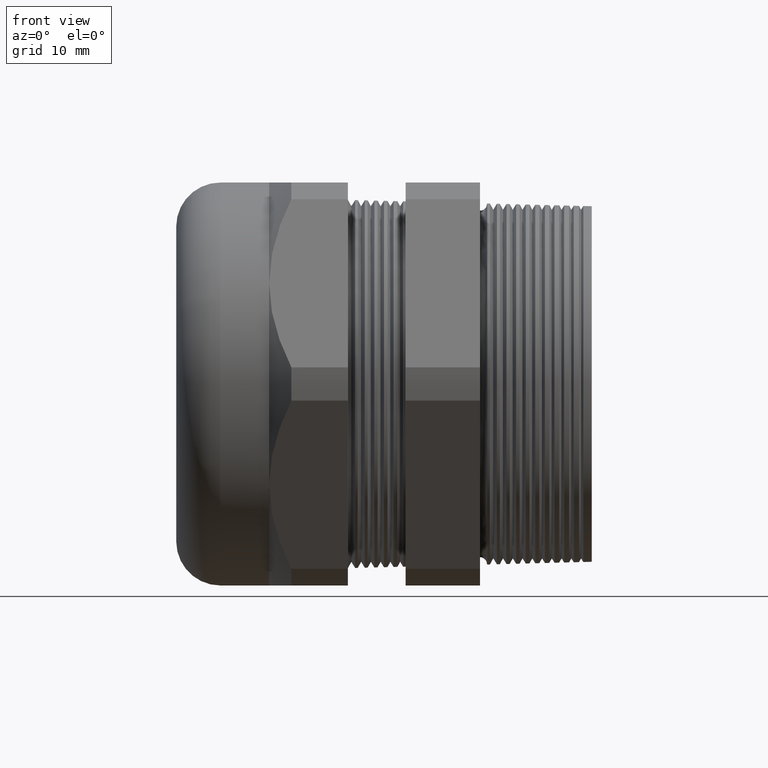
[diagram: clean part render]
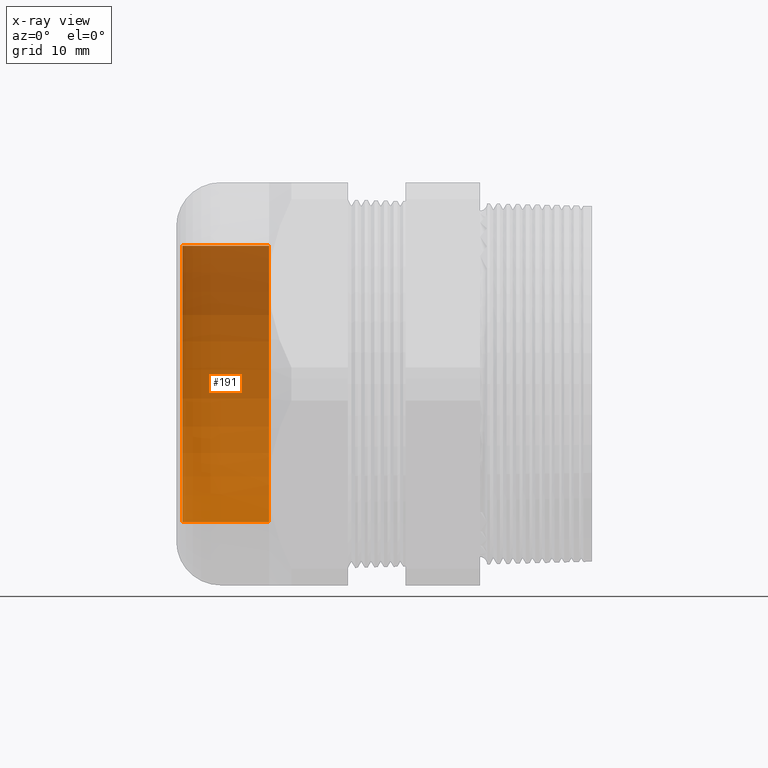
[diagram: x-ray — body ghosted, one internal face saturated and labeled with its STEP entity id]
A machine part, front view, then the same camera in x-ray: the body is ghosted and one INTERNAL B-rep face — a face not visible from any outside direction — is saturated and labeled: STEP entity #191.
In plain terms, the highlighted cylindrical surface (partial cylindrical patch) has radius 22.2885 mm, axis along (1, 0, 0).
Its self-contained STEP definition (entity closure, byte-faithful):
#165 = ORIENTED_EDGE ( 'NONE', *, *, #187, .T. ) ;
#166 = ORIENTED_EDGE ( 'NONE', *, *, #167, .T. ) ;
#167 = EDGE_CURVE ( 'NONE', #185, #168, #533, .T. ) ;
#168 = VERTEX_POINT ( 'NONE', #529 ) ;
#169 = ORIENTED_EDGE ( 'NONE', *, *, #170, .F. ) ;
#170 = EDGE_CURVE ( 'NONE', #171, #168, #528, .T. ) ;
#171 = VERTEX_POINT ( 'NONE', #523 ) ;
#172 = ORIENTED_EDGE ( 'NONE', *, *, #173, .F. ) ;
#173 = EDGE_CURVE ( 'NONE', #188, #171, #587, .T. ) ;
#185 = VERTEX_POINT ( 'NONE', #558 ) ;
#187 = EDGE_CURVE ( 'NONE', #188, #185, #557, .T. ) ;
#188 = VERTEX_POINT ( 'NONE', #618 ) ;
#191 = ADVANCED_FACE ( 'NONE', ( #617 ), #609, .T. ) ;
#192 = EDGE_LOOP ( 'NONE', ( #165, #166, #169, #172 ) ) ;
#523 = CARTESIAN_POINT ( 'NONE',  ( -1.649449999999999600, 0.0000000000000000000, -0.8774999999999999500 ) ) ;
#524 = DIRECTION ( 'NONE',  ( 0.0000000000000000000, 0.0000000000000000000, -1.000000000000000000 ) ) ;
#525 = DIRECTION ( 'NONE',  ( 1.000000000000000000, 0.0000000000000000000, 0.0000000000000000000 ) ) ;
#526 = CARTESIAN_POINT ( 'NONE',  ( -1.649449999999999600, 0.0000000000000000000, 0.0000000000000000000 ) ) ;
#527 = AXIS2_PLACEMENT_3D ( 'NONE', #526, #525, #524 ) ;
#528 = CIRCLE ( 'NONE', #527, 0.8774999999999999500 ) ;
#529 = CARTESIAN_POINT ( 'NONE',  ( -1.649449999999999600, 1.074627566251802500E-016, 0.8774999999999999500 ) ) ;
#530 = DIRECTION ( 'NONE',  ( 1.000000000000000000, 0.0000000000000000000, 0.0000000000000000000 ) ) ;
#531 = VECTOR ( 'NONE', #530, 39.37007874015748100 ) ;
#532 = CARTESIAN_POINT ( 'NONE',  ( 0.0000000000000000000, 1.074627566251802700E-016, 0.8775000000000001700 ) ) ;
#533 = LINE ( 'NONE', #532, #531 ) ;
#556 = AXIS2_PLACEMENT_3D ( 'NONE', #621, #620, #619 ) ;
#557 = CIRCLE ( 'NONE', #556, 0.8775000000000001700 ) ;
#558 = CARTESIAN_POINT ( 'NONE',  ( -2.200999999999999600, 1.074627566251802700E-016, 0.8775000000000001700 ) ) ;
#584 = DIRECTION ( 'NONE',  ( 1.000000000000000000, 0.0000000000000000000, 0.0000000000000000000 ) ) ;
#585 = VECTOR ( 'NONE', #584, 39.37007874015748100 ) ;
#586 = CARTESIAN_POINT ( 'NONE',  ( 0.0000000000000000000, 0.0000000000000000000, -0.8775000000000001700 ) ) ;
#587 = LINE ( 'NONE', #586, #585 ) ;
#606 = DIRECTION ( 'NONE',  ( 0.0000000000000000000, 0.0000000000000000000, -1.000000000000000000 ) ) ;
#607 = DIRECTION ( 'NONE',  ( 1.000000000000000000, 0.0000000000000000000, 0.0000000000000000000 ) ) ;
#608 = AXIS2_PLACEMENT_3D ( 'NONE', #611, #607, #606 ) ;
#609 = CYLINDRICAL_SURFACE ( 'NONE', #608, 0.8775000000000001700 ) ;
#611 = CARTESIAN_POINT ( 'NONE',  ( 0.0000000000000000000, 0.0000000000000000000, 0.0000000000000000000 ) ) ;
#617 = FACE_OUTER_BOUND ( 'NONE', #192, .T. ) ;
#618 = CARTESIAN_POINT ( 'NONE',  ( -2.200999999999999600, 0.0000000000000000000, -0.8775000000000001700 ) ) ;
#619 = DIRECTION ( 'NONE',  ( 0.0000000000000000000, 0.0000000000000000000, -1.000000000000000000 ) ) ;
#620 = DIRECTION ( 'NONE',  ( 1.000000000000000000, 0.0000000000000000000, 0.0000000000000000000 ) ) ;
#621 = CARTESIAN_POINT ( 'NONE',  ( -2.200999999999999600, 0.0000000000000000000, 0.0000000000000000000 ) ) ;